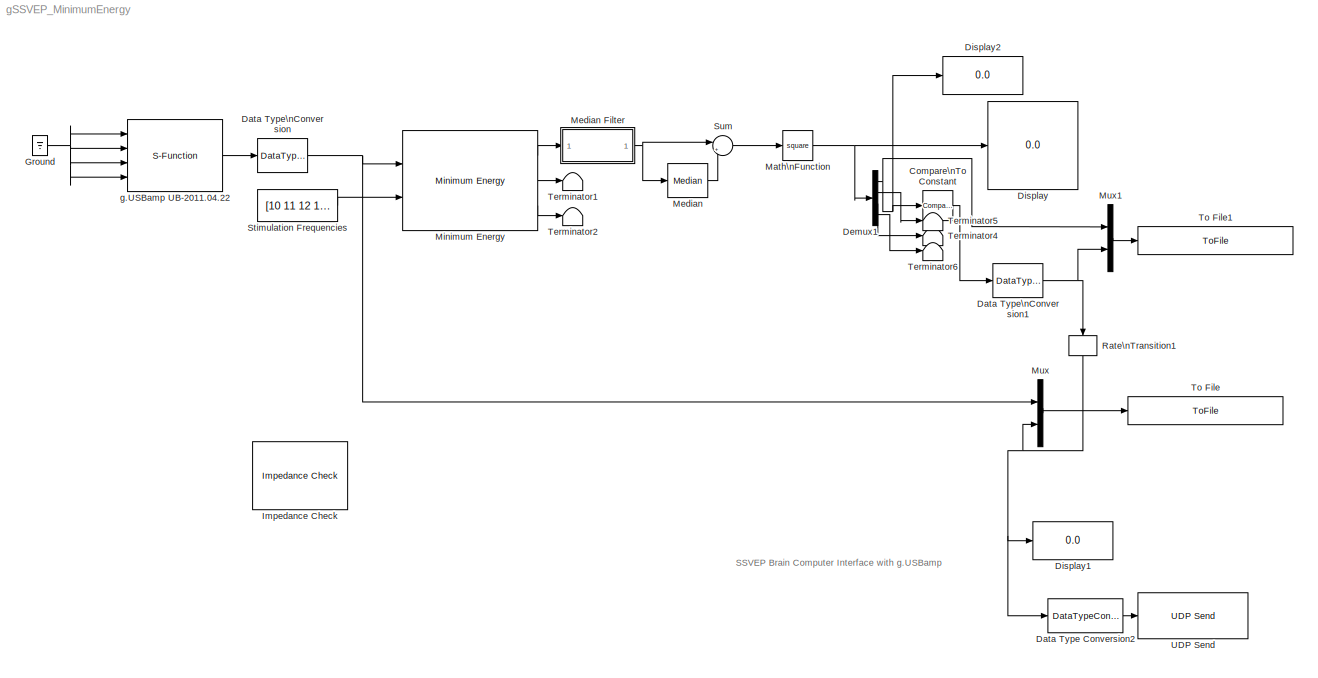
MODEL gSSVEP_MinimumEnergy
KIND model
BLOCK [Reference] Compare\nTo Constant  REF=simulink/Logic and Bit\nOperations/Compare\nTo Constant
  OutDataTypeStr = boolean
  Ports = [1, 1]
  SID = 91
  SourceBlock = simulink/Logic and Bit\nOperations/Compare\nTo Constant
  SourceType = Compare To Constant
  ZeroCross = on
  const = 30
  relop = >
BLOCK [DataTypeConversion] Data Type Conversion2
  OutDataTypeStr = uint8
  RndMeth = Floor
  SID = 95
  SaturateOnIntegerOverflow = off
BLOCK [DataTypeConversion] Data Type\nConversion
  OutDataTypeStr = double
  RndMeth = Floor
  SID = 21
  SaturateOnIntegerOverflow = off
BLOCK [DataTypeConversion] Data Type\nConversion1
  OutDataTypeStr = double
  RndMeth = Floor
  SID = 92
  SaturateOnIntegerOverflow = off
BLOCK [Demux] Demux1
  DisplayOption = bar
  Ports = [1, 4]
  SID = 86
BLOCK [Display] Display
  Decimation = 1
  Ports = [1]
  SID = 23
BLOCK [Display] Display1
  Decimation = 1
  Ports = [1]
  SID = 97
BLOCK [Display] Display2
  Decimation = 1
  Ports = [1]
  SID = 98
BLOCK [Ground] Ground
  SID = 84
BLOCK [Reference] Impedance Check  REF=Tools/Impedance Check
  Ports = []
  SID = 26
  SourceBlock = Tools/Impedance Check
  SourceType = g.USBamp Impedance Check
BLOCK [Math] Math\nFunction
  Operator = square
  Ports = [1, 1]
  SID = 85
BLOCK [Reference] Median  REF=dspstat3/Median
  LockScale = off
  Ports = [1, 1]
  SID = 61
  SourceBlock = dspstat3/Median
  SourceType = Median
  accumDataTypeStr = Inherit: Same as product output
  accumFracLength = 30
  accumLastDataTypeStr = Inherit: Same as product output
  accumMode = Same as product output
  accumWordLength = 32
  additionalParams = off
  allowOverrides = off
  dimension = 1
  directionMode = Entire input
  outputDataTypeStr = Inherit: Same as accumulator
  outputFracLength = 15
  outputLastDataTypeStr = Inherit: Same as accumulator
  outputMax = []
  outputMin = []
  outputMode = Same as accumulator
  outputWordLength = 16
  overflowMode = off
  prodOutputDataTypeStr = Inherit: Same as input
  prodOutputFracLength = 30
  prodOutputLastDataTypeStr = Inherit: Same as input
  prodOutputMode = Same as input
  prodOutputWordLength = 32
  roundingMode = Floor
  sortAlg = Quick sort
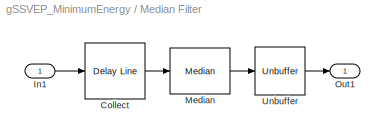
BLOCK [SubSystem] Median Filter
  Ports = [1, 1]
  RequestExecContextInheritance = off
  SID = 55
  Variant = off
BLOCK [Reference] Median Filter/Collect  REF=dspbuff3/Delay Line
  OutputFrames = on
  Ports = [1, 1]
  SID = 57
  SourceBlock = dspbuff3/Delay Line
  SourceType = Delay Line
  TreatMby1Signals = M channels (this choice will be removed - see release notes)
  UserData = DataTag0
  UserDataPersistent = on
  directfeed = on
  enable_output = off
  hold_output = off
  ic = 0
  siz = 10
BLOCK [Inport] Median Filter/In1
  IconDisplay = Port number
  SID = 56
BLOCK [Reference] Median Filter/Median  REF=dspstat3/Median
  LockScale = off
  Ports = [1, 1]
  SID = 58
  SourceBlock = dspstat3/Median
  SourceType = Median
  accumDataTypeStr = Inherit: Same as product output
  accumFracLength = 30
  accumLastDataTypeStr = Inherit: Same as product output
  accumMode = Same as product output
  accumWordLength = 32
  additionalParams = off
  allowOverrides = off
  dimension = 1
  directionMode = Specified dimension
  outputDataTypeStr = Inherit: Same as accumulator
  outputFracLength = 15
  outputLastDataTypeStr = Inherit: Same as accumulator
  outputMax = []
  outputMin = []
  outputMode = Same as accumulator
  outputWordLength = 16
  overflowMode = off
  prodOutputDataTypeStr = Inherit: Same as input
  prodOutputFracLength = 30
  prodOutputLastDataTypeStr = Inherit: Same as input
  prodOutputMode = Same as input
  prodOutputWordLength = 32
  roundingMode = Floor
  sortAlg = Quick sort
BLOCK [Outport] Median Filter/Out1
  IconDisplay = Port number
  SID = 60
BLOCK [Unbuffer] Median Filter/Unbuffer
  Ports = [1, 1]
  SID = 64
BLOCK [Reference] Minimum Energy  REF=gRTanalyze/Minimum Energy
  Ports = [2, 3]
  SID = 33
  SourceBlock = gRTanalyze/Minimum Energy
  SourceType = SSVEP Minimum Energy
  UserData = DataTag1
  UserDataPersistent = on
  bufflen = 768
  modelorder = 7
  numharmonics = 1
  reprate = 0.20
BLOCK [Mux] Mux
  DisplayOption = bar
  Inputs = 2
  Ports = [2, 1]
  SID = 34
BLOCK [Mux] Mux1
  DisplayOption = bar
  Inputs = 2
  Ports = [2, 1]
  SID = 94
BLOCK [RateTransition] Rate\nTransition1
  SID = 41
BLOCK [Constant] Stimulation Frequencies
  SID = 43
  SampleTime = 1/256
  Value = [10 11 12 13]
BLOCK [Sum] Sum
  IconShape = round
  InputSameDT = off
  Inputs = |+-
  OutDataTypeStr = Inherit: Inherit via internal rule
  Ports = [2, 1]
  SID = 62
  SaturateOnIntegerOverflow = off
BLOCK [Terminator] Terminator1
  SID = 44
BLOCK [Terminator] Terminator2
  SID = 45
BLOCK [Terminator] Terminator4
  SID = 87
BLOCK [Terminator] Terminator5
  SID = 88
BLOCK [Terminator] Terminator6
  SID = 89
BLOCK [ToFile] To File
  Filename = training_session_2.mat
  MatrixName = y
  Ports = [1]
  SID = 47
BLOCK [ToFile] To File1
  Filename = squared_output.mat
  MatrixName = y
  Ports = [1]
  SID = 93
BLOCK [Reference] UDP Send  REF=instrumentlib/UDP Send
  ByteOrder = BigEndian
  EnableBlockingMode = on
  Host = 172.22.11.2
  LocalPort = -1
  Port = 1111
  Ports = [1]
  SID = 96
  SourceBlock = instrumentlib/UDP Send
  SourceType = UDP Send
BLOCK [S-Function] g.USBamp UB-2011.04.22
  EnableBusSupport = off
  FunctionName = sf_gUSBamp
  OpenFcn = %gua_click   \ngua_block_cfg
  Parameters = cfg,snr
  Ports = [4, 1]
  SFunctionDeploymentMode = off
  SID = 54
ANNOTATION (root): SSVEP Brain Computer Interface with g.USBamp
LINE Compare\nTo Constant:1 -> Data Type\nConversion1:1
LINE Data Type Conversion2:1 -> UDP Send:1
NET Data Type\nConversion1:1 -> Mux1:2, Rate\nTransition1:1
NET Data Type\nConversion:1 -> Minimum Energy:1, Mux:1
NET Demux1:1 -> Compare\nTo Constant:1, Display2:1, Mux1:1
LINE Demux1:2 -> Terminator5:1
LINE Demux1:3 -> Terminator4:1
LINE Demux1:4 -> Terminator6:1
NET Ground:1 -> g.USBamp UB-2011.04.22:1, g.USBamp UB-2011.04.22:2, g.USBamp UB-2011.04.22:3, g.USBamp UB-2011.04.22:4
NET Math\nFunction:1 -> Demux1:1, Display:1
LINE Median Filter/Collect:1 -> Median Filter/Median:1
LINE Median Filter/In1:1 -> Median Filter/Collect:1
LINE Median Filter/Median:1 -> Median Filter/Unbuffer:1
LINE Median Filter/Unbuffer:1 -> Median Filter/Out1:1
NET Median Filter:1 -> Median:1, Sum:1
LINE Median:1 -> Sum:2
LINE Minimum Energy:1 -> Median Filter:1
LINE Minimum Energy:2 -> Terminator1:1
LINE Minimum Energy:3 -> Terminator2:1
LINE Mux1:1 -> To File1:1
LINE Mux:1 -> To File:1
NET Rate\nTransition1:1 -> Data Type Conversion2:1, Display1:1, Mux:2
LINE Stimulation Frequencies:1 -> Minimum Energy:2
LINE Sum:1 -> Math\nFunction:1
LINE g.USBamp UB-2011.04.22:1 -> Data Type\nConversion:1
note: NET lines group one-source signal fan-out (src -> all destinations, sorted); 1:1 wires keep LINE
